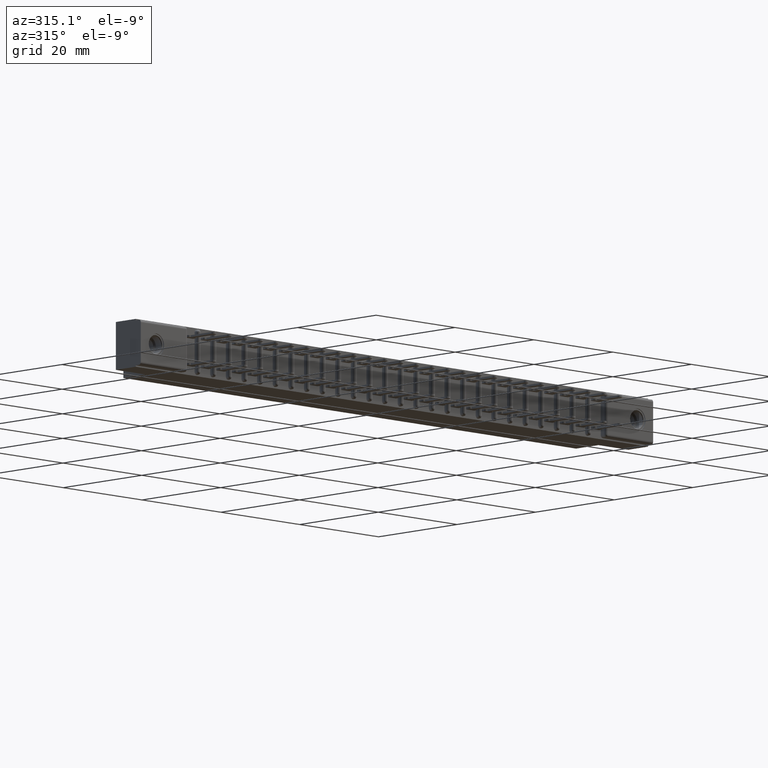
[diagram: clean part render]
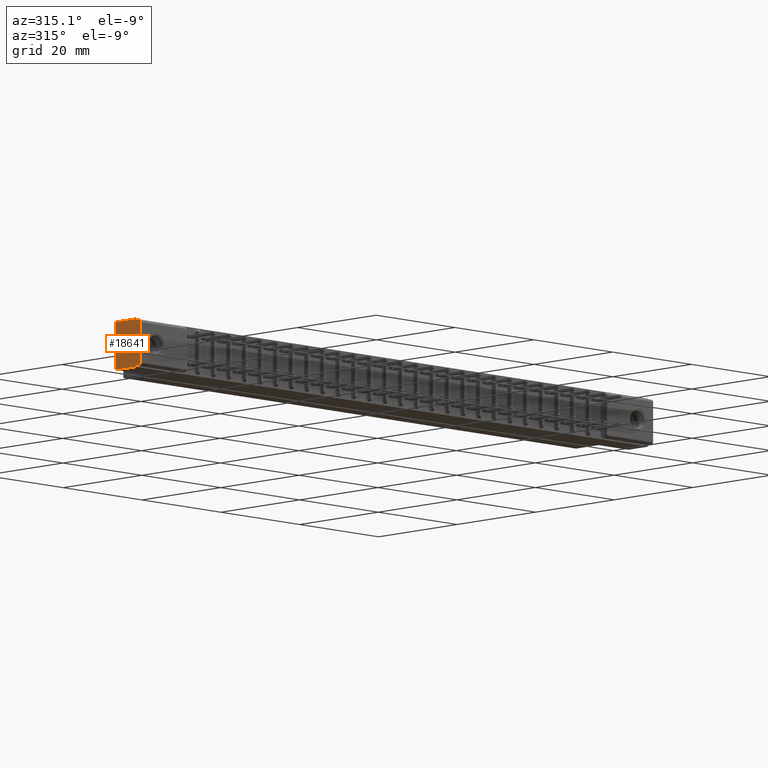
[diagram: same view with one face highlighted and labeled with its STEP entity id]
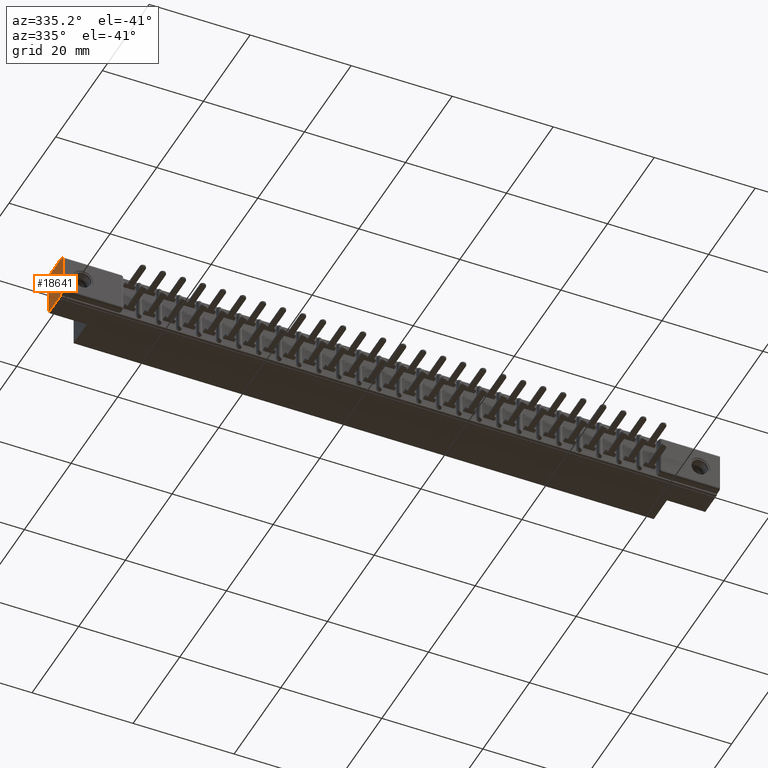
[diagram: same view with one face highlighted and labeled with its STEP entity id]
A machine part, auxiliary view. The second image highlights one B-rep face of the part: STEP entity #18641.
A second angle (auxiliary view) of the same face is appended — the face is thin or edge-on in the first view.
In plain terms, the highlighted planar face has unit normal (1, 0, 0).
Its self-contained STEP definition (entity closure, byte-faithful):
#459 = EDGE_CURVE ( 'NONE', #18441, #3635, #9336, .T. ) ;
#574 = EDGE_CURVE ( 'NONE', #24284, #10767, #23711, .T. ) ;
#951 = DIRECTION ( 'NONE',  ( 0.0000000000000000000, 0.0000000000000000000, 1.000000000000000000 ) ) ;
#1236 = CARTESIAN_POINT ( 'NONE',  ( 1.083812417245411660E-17, 0.05099999999999999672, -0.3330000000000001292 ) ) ;
#1259 = DIRECTION ( 'NONE',  ( 0.0000000000000000000, 0.0000000000000000000, -1.000000000000000000 ) ) ;
#1275 = CARTESIAN_POINT ( 'NONE',  ( 0.0000000000000000000, 0.4729999999999999760, -0.3430000000000000271 ) ) ;
#1374 = VERTEX_POINT ( 'NONE', #24454 ) ;
#1387 = VECTOR ( 'NONE', #18112, 39.37007874015748143 ) ;
#3635 = VERTEX_POINT ( 'NONE', #15758 ) ;
#4055 = CARTESIAN_POINT ( 'NONE',  ( 1.083812417245411660E-17, 0.05099999999999999672, -0.01000000000000006439 ) ) ;
#4886 = EDGE_CURVE ( 'NONE', #18441, #24284, #7541, .T. ) ;
#5210 = DIRECTION ( 'NONE',  ( 0.0000000000000000000, 0.0000000000000000000, -1.000000000000000000 ) ) ;
#5344 = CARTESIAN_POINT ( 'NONE',  ( 0.0000000000000000000, 0.05099999999999999672, 0.0000000000000000000 ) ) ;
#5842 = DIRECTION ( 'NONE',  ( -0.0000000000000000000, -1.000000000000000000, -0.0000000000000000000 ) ) ;
#6052 = EDGE_CURVE ( 'NONE', #16110, #20193, #17368, .T. ) ;
#6404 = EDGE_CURVE ( 'NONE', #1374, #21882, #11218, .T. ) ;
#6446 = VECTOR ( 'NONE', #24263, 39.37007874015748143 ) ;
#6569 = CARTESIAN_POINT ( 'NONE',  ( 0.0000000000000000000, 0.05099999999999999672, 0.0000000000000000000 ) ) ;
#7096 = AXIS2_PLACEMENT_3D ( 'NONE', #18629, #26958, #8212 ) ;
#7157 = VECTOR ( 'NONE', #18668, 39.37007874015748143 ) ;
#7188 = VERTEX_POINT ( 'NONE', #4055 ) ;
#7541 = LINE ( 'NONE', #15910, #6446 ) ;
#7543 = LINE ( 'NONE', #16191, #1387 ) ;
#7840 = DIRECTION ( 'NONE',  ( -1.000000000000000000, 0.0000000000000000000, -0.0000000000000000000 ) ) ;
#7866 = CARTESIAN_POINT ( 'NONE',  ( 0.0000000000000000000, 0.2499999999999999722, 0.0000000000000000000 ) ) ;
#8212 = DIRECTION ( 'NONE',  ( 0.0000000000000000000, 0.0000000000000000000, -1.000000000000000000 ) ) ;
#9063 = AXIS2_PLACEMENT_3D ( 'NONE', #13449, #9333, #5210 ) ;
#9161 = CARTESIAN_POINT ( 'NONE',  ( 0.0000000000000000000, 0.2499999999999999722, 0.0000000000000000000 ) ) ;
#9333 = DIRECTION ( 'NONE',  ( -1.000000000000000000, 0.0000000000000000000, -0.0000000000000000000 ) ) ;
#9336 = LINE ( 'NONE', #20170, #11458 ) ;
#9434 = LINE ( 'NONE', #26004, #9515 ) ;
#9515 = VECTOR ( 'NONE', #21424, 39.37007874015748143 ) ;
#10002 = EDGE_CURVE ( 'NONE', #20992, #7188, #13149, .T. ) ;
#10210 = ORIENTED_EDGE ( 'NONE', *, *, #574, .T. ) ;
#10767 = VERTEX_POINT ( 'NONE', #17052 ) ;
#11012 = ORIENTED_EDGE ( 'NONE', *, *, #4886, .T. ) ;
#11087 = ORIENTED_EDGE ( 'NONE', *, *, #6404, .F. ) ;
#11218 = LINE ( 'NONE', #9161, #11280 ) ;
#11280 = VECTOR ( 'NONE', #951, 39.37007874015748143 ) ;
#11458 = VECTOR ( 'NONE', #1259, 39.37007874015748143 ) ;
#12127 = EDGE_LOOP ( 'NONE', ( #15783, #25886, #24386, #23701, #22034, #11087, #21210, #18901, #11012, #10210 ) ) ;
#13149 = LINE ( 'NONE', #6569, #13405 ) ;
#13295 = CARTESIAN_POINT ( 'NONE',  ( 1.083812417245411660E-17, 0.02000000000000000042, -0.01000000000000006439 ) ) ;
#13405 = VECTOR ( 'NONE', #14928, 39.37007874015748143 ) ;
#13449 = CARTESIAN_POINT ( 'NONE',  ( 0.0000000000000000000, 0.02000000000000000042, -0.03000000000000006481 ) ) ;
#14135 = DIRECTION ( 'NONE',  ( 0.0000000000000000000, 0.0000000000000000000, -1.000000000000000000 ) ) ;
#14928 = DIRECTION ( 'NONE',  ( 0.0000000000000000000, 0.0000000000000000000, -1.000000000000000000 ) ) ;
#14942 = EDGE_CURVE ( 'NONE', #21882, #20992, #7543, .T. ) ;
#15179 = VECTOR ( 'NONE', #5842, 39.37007874015748143 ) ;
#15758 = CARTESIAN_POINT ( 'NONE',  ( 0.0000000000000000000, 0.05099999999999999672, -0.3430000000000000271 ) ) ;
#15783 = ORIENTED_EDGE ( 'NONE', *, *, #26778, .T. ) ;
#15910 = CARTESIAN_POINT ( 'NONE',  ( 1.083812417245411660E-17, 0.05099999999999999672, -0.3330000000000001292 ) ) ;
#16110 = VERTEX_POINT ( 'NONE', #18974 ) ;
#16135 = CARTESIAN_POINT ( 'NONE',  ( 1.083812417245411660E-17, 0.05099999999999999672, -0.01000000000000006439 ) ) ;
#16191 = CARTESIAN_POINT ( 'NONE',  ( 0.0000000000000000000, 0.4729999999999999760, 0.0000000000000000000 ) ) ;
#17052 = CARTESIAN_POINT ( 'NONE',  ( 0.0000000000000000000, 0.0000000000000000000, -0.3130000000000001115 ) ) ;
#17368 = CIRCLE ( 'NONE', #9063, 0.02000000000000000042 ) ;
#18112 = DIRECTION ( 'NONE',  ( -0.0000000000000000000, -1.000000000000000000, -0.0000000000000000000 ) ) ;
#18441 = VERTEX_POINT ( 'NONE', #1236 ) ;
#18629 = CARTESIAN_POINT ( 'NONE',  ( 0.0000000000000000000, 0.4729999999999999760, 0.0000000000000000000 ) ) ;
#18641 = ADVANCED_FACE ( 'NONE', ( #22863 ), #20685, .F. ) ;
#18668 = DIRECTION ( 'NONE',  ( -0.0000000000000000000, -1.000000000000000000, -0.0000000000000000000 ) ) ;
#18901 = ORIENTED_EDGE ( 'NONE', *, *, #459, .F. ) ;
#18974 = CARTESIAN_POINT ( 'NONE',  ( 0.0000000000000000000, 0.0000000000000000000, -0.03000000000000006481 ) ) ;
#19319 = AXIS2_PLACEMENT_3D ( 'NONE', #26599, #7840, #14135 ) ;
#19791 = EDGE_CURVE ( 'NONE', #1374, #3635, #20045, .T. ) ;
#20045 = LINE ( 'NONE', #1275, #7157 ) ;
#20170 = CARTESIAN_POINT ( 'NONE',  ( 0.0000000000000000000, 0.05099999999999999672, 0.0000000000000000000 ) ) ;
#20193 = VERTEX_POINT ( 'NONE', #13295 ) ;
#20685 = PLANE ( 'NONE',  #7096 ) ;
#20992 = VERTEX_POINT ( 'NONE', #5344 ) ;
#21210 = ORIENTED_EDGE ( 'NONE', *, *, #19791, .T. ) ;
#21424 = DIRECTION ( 'NONE',  ( -0.0000000000000000000, -0.0000000000000000000, 1.000000000000000000 ) ) ;
#21882 = VERTEX_POINT ( 'NONE', #7866 ) ;
#22034 = ORIENTED_EDGE ( 'NONE', *, *, #14942, .F. ) ;
#22863 = FACE_OUTER_BOUND ( 'NONE', #12127, .T. ) ;
#23387 = CARTESIAN_POINT ( 'NONE',  ( 1.083812417245411660E-17, 0.02000000000000000042, -0.3330000000000001292 ) ) ;
#23701 = ORIENTED_EDGE ( 'NONE', *, *, #10002, .F. ) ;
#23711 = CIRCLE ( 'NONE', #19319, 0.01999999999999999001 ) ;
#24263 = DIRECTION ( 'NONE',  ( -0.0000000000000000000, -1.000000000000000000, -0.0000000000000000000 ) ) ;
#24284 = VERTEX_POINT ( 'NONE', #23387 ) ;
#24386 = ORIENTED_EDGE ( 'NONE', *, *, #26224, .F. ) ;
#24454 = CARTESIAN_POINT ( 'NONE',  ( 0.0000000000000000000, 0.2499999999999999722, -0.3430000000000000271 ) ) ;
#25886 = ORIENTED_EDGE ( 'NONE', *, *, #6052, .T. ) ;
#26004 = CARTESIAN_POINT ( 'NONE',  ( 0.0000000000000000000, 0.0000000000000000000, 0.0000000000000000000 ) ) ;
#26224 = EDGE_CURVE ( 'NONE', #7188, #20193, #26525, .T. ) ;
#26525 = LINE ( 'NONE', #16135, #15179 ) ;
#26599 = CARTESIAN_POINT ( 'NONE',  ( 0.0000000000000000000, 0.02000000000000000042, -0.3130000000000001115 ) ) ;
#26778 = EDGE_CURVE ( 'NONE', #10767, #16110, #9434, .T. ) ;
#26958 = DIRECTION ( 'NONE',  ( 1.000000000000000000, -0.0000000000000000000, 0.0000000000000000000 ) ) ;